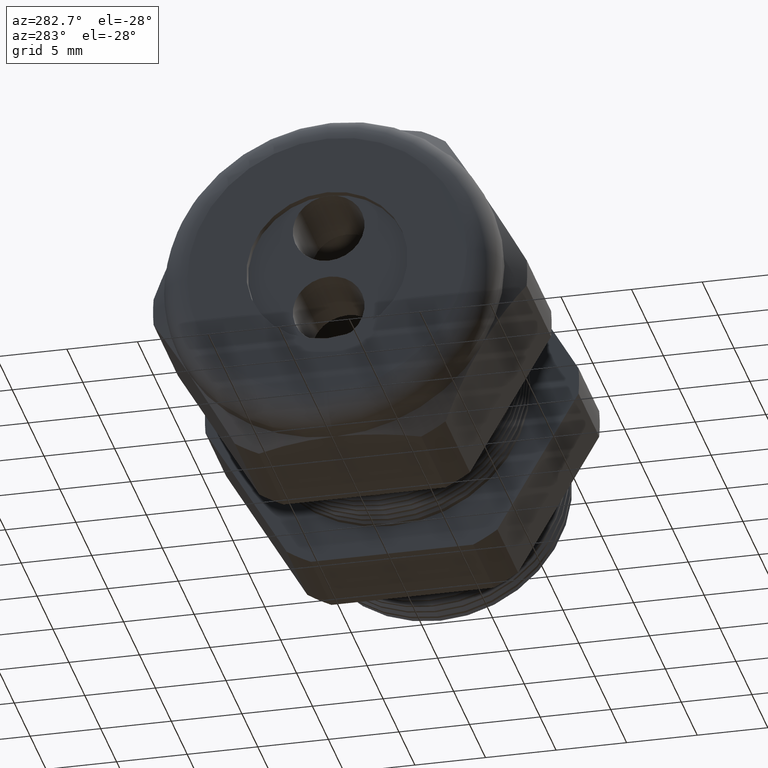
[diagram: clean part render]
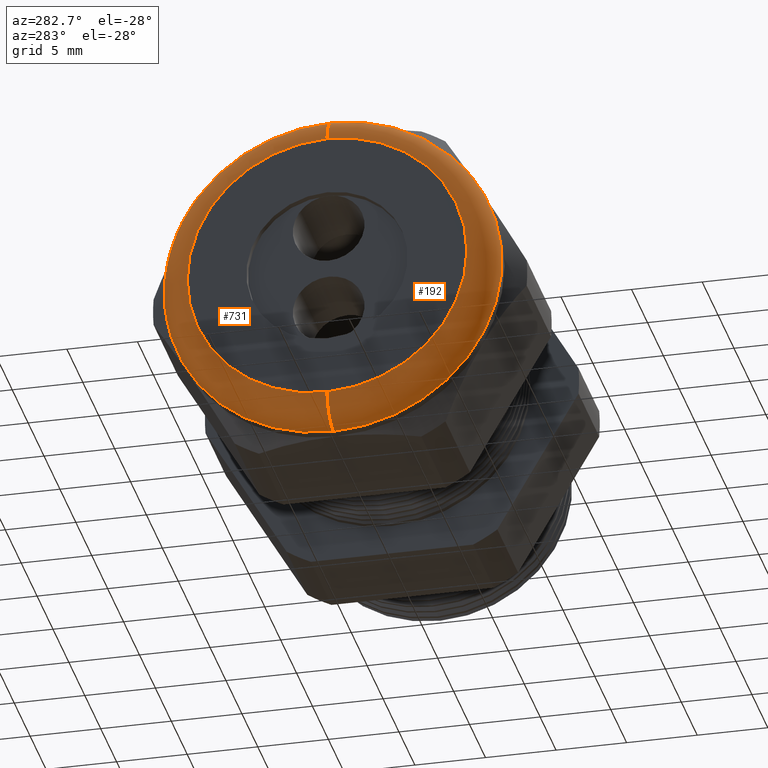
[diagram: same view with one multi-face feature highlighted, each face labeled with its STEP entity id]
A machine part, auxiliary view. The highlighted faces form ONE feature: a constant-radius fillet chain: 2 tangent blend faces with common blend radius 2.032 mm. The faces share edges in the B-rep.
Their STEP definitions:
[1] entity #731 (Torus):
#731 = ADVANCED_FACE ( 'NONE', ( #2386 ), #2385, .T. ) ;
#732 = EDGE_LOOP ( 'NONE', ( #733, #4694, #4693, #4691 ) ) ;
#733 = ORIENTED_EDGE ( 'NONE', *, *, #734, .F. ) ;
#734 = EDGE_CURVE ( 'NONE', #735, #736, #2442, .T. ) ;
#735 = VERTEX_POINT ( 'NONE', #2437 ) ;
#736 = VERTEX_POINT ( 'NONE', #2436 ) ;
#2384 = CARTESIAN_POINT ( 'NONE',  ( -1.290000000000000300, 0.0000000000000000000, 0.0000000000000000000 ) ) ;
#2385 = TOROIDAL_SURFACE ( 'NONE', #2445, 0.3899999999999999600, 0.08000000000000000200 ) ;
#2386 = FACE_OUTER_BOUND ( 'NONE', #732, .T. ) ;
#2436 = CARTESIAN_POINT ( 'NONE',  ( -1.290000000000000300, 5.755839955992558400E-017, 0.4699999999999999200 ) ) ;
#2437 = CARTESIAN_POINT ( 'NONE',  ( -1.290000000000000300, 0.0000000000000000000, -0.4699999999999999200 ) ) ;
#2438 = DIRECTION ( 'NONE',  ( 0.0000000000000000000, 0.0000000000000000000, 1.000000000000000000 ) ) ;
#2439 = DIRECTION ( 'NONE',  ( 1.000000000000000000, 0.0000000000000000000, 0.0000000000000000000 ) ) ;
#2440 = CARTESIAN_POINT ( 'NONE',  ( -1.290000000000000300, 0.0000000000000000000, 0.0000000000000000000 ) ) ;
#2441 = AXIS2_PLACEMENT_3D ( 'NONE', #2440, #2439, #2438 ) ;
#2442 = CIRCLE ( 'NONE', #2441, 0.4699999999999999200 ) ;
#2443 = DIRECTION ( 'NONE',  ( 0.0000000000000000000, 0.0000000000000000000, 1.000000000000000000 ) ) ;
#2444 = DIRECTION ( 'NONE',  ( -1.000000000000000000, 0.0000000000000000000, 0.0000000000000000000 ) ) ;
#2445 = AXIS2_PLACEMENT_3D ( 'NONE', #2384, #2444, #2443 ) ;
#3897 = CARTESIAN_POINT ( 'NONE',  ( -1.370000000000000100, 0.0000000000000000000, 0.3899999999999999600 ) ) ;
#3898 = DIRECTION ( 'NONE',  ( 0.0000000000000000000, 0.0000000000000000000, -1.000000000000000000 ) ) ;
#3899 = DIRECTION ( 'NONE',  ( 0.0000000000000000000, -1.000000000000000000, 0.0000000000000000000 ) ) ;
#3900 = CARTESIAN_POINT ( 'NONE',  ( -1.290000000000000300, 0.0000000000000000000, 0.3899999999999999600 ) ) ;
#3901 = AXIS2_PLACEMENT_3D ( 'NONE', #3900, #3899, #3898 ) ;
#3902 = CIRCLE ( 'NONE', #3901, 0.07999999999999996000 ) ;
#3946 = CARTESIAN_POINT ( 'NONE',  ( -1.370000000000000100, 5.265981236333617600E-017, -0.3899999999999999600 ) ) ;
#3947 = DIRECTION ( 'NONE',  ( 0.0000000000000000000, 0.0000000000000000000, 1.000000000000000000 ) ) ;
#3948 = DIRECTION ( 'NONE',  ( -1.000000000000000000, 0.0000000000000000000, 0.0000000000000000000 ) ) ;
#3949 = CARTESIAN_POINT ( 'NONE',  ( -1.370000000000000100, 0.0000000000000000000, 0.0000000000000000000 ) ) ;
#3950 = AXIS2_PLACEMENT_3D ( 'NONE', #3949, #3948, #3947 ) ;
#3951 = CIRCLE ( 'NONE', #3950, 0.3899999999999999600 ) ;
#3952 = DIRECTION ( 'NONE',  ( 0.0000000000000000000, -1.224646799147353900E-016, 1.000000000000000000 ) ) ;
#3953 = DIRECTION ( 'NONE',  ( 0.0000000000000000000, 1.000000000000000000, 1.224646799147353200E-016 ) ) ;
#3954 = CARTESIAN_POINT ( 'NONE',  ( -1.290000000000000300, 4.776122516674676800E-017, -0.3899999999999999600 ) ) ;
#3955 = AXIS2_PLACEMENT_3D ( 'NONE', #3954, #3953, #3952 ) ;
#3956 = CIRCLE ( 'NONE', #3955, 0.07999999999999996000 ) ;
#4690 = EDGE_CURVE ( 'NONE', #736, #4692, #3902, .T. ) ;
#4691 = ORIENTED_EDGE ( 'NONE', *, *, #4690, .F. ) ;
#4692 = VERTEX_POINT ( 'NONE', #3897 ) ;
#4693 = ORIENTED_EDGE ( 'NONE', *, *, #4696, .F. ) ;
#4694 = ORIENTED_EDGE ( 'NONE', *, *, #4695, .T. ) ;
#4695 = EDGE_CURVE ( 'NONE', #735, #4697, #3956, .T. ) ;
#4696 = EDGE_CURVE ( 'NONE', #4692, #4697, #3951, .T. ) ;
#4697 = VERTEX_POINT ( 'NONE', #3946 ) ;
[2] entity #192 (Torus):
#149 = ORIENTED_EDGE ( 'NONE', *, *, #380, .F. ) ;
#153 = ORIENTED_EDGE ( 'NONE', *, *, #4690, .T. ) ;
#154 = ORIENTED_EDGE ( 'NONE', *, *, #4325, .F. ) ;
#163 = ORIENTED_EDGE ( 'NONE', *, *, #4695, .F. ) ;
#164 = EDGE_LOOP ( 'NONE', ( #163, #154, #153, #149 ) ) ;
#192 = ADVANCED_FACE ( 'NONE', ( #1468 ), #1467, .T. ) ;
#380 = EDGE_CURVE ( 'NONE', #4697, #4692, #1723, .T. ) ;
#735 = VERTEX_POINT ( 'NONE', #2437 ) ;
#736 = VERTEX_POINT ( 'NONE', #2436 ) ;
#1463 = DIRECTION ( 'NONE',  ( 0.0000000000000000000, 0.0000000000000000000, 1.000000000000000000 ) ) ;
#1464 = DIRECTION ( 'NONE',  ( -1.000000000000000000, 0.0000000000000000000, 0.0000000000000000000 ) ) ;
#1465 = CARTESIAN_POINT ( 'NONE',  ( -1.290000000000000300, 0.0000000000000000000, 0.0000000000000000000 ) ) ;
#1466 = AXIS2_PLACEMENT_3D ( 'NONE', #1465, #1464, #1463 ) ;
#1467 = TOROIDAL_SURFACE ( 'NONE', #1466, 0.3899999999999999600, 0.08000000000000000200 ) ;
#1468 = FACE_OUTER_BOUND ( 'NONE', #164, .T. ) ;
#1719 = DIRECTION ( 'NONE',  ( 0.0000000000000000000, 0.0000000000000000000, 1.000000000000000000 ) ) ;
#1720 = DIRECTION ( 'NONE',  ( -1.000000000000000000, 0.0000000000000000000, 0.0000000000000000000 ) ) ;
#1721 = CARTESIAN_POINT ( 'NONE',  ( -1.370000000000000100, 0.0000000000000000000, 0.0000000000000000000 ) ) ;
#1722 = AXIS2_PLACEMENT_3D ( 'NONE', #1721, #1720, #1719 ) ;
#1723 = CIRCLE ( 'NONE', #1722, 0.3899999999999999600 ) ;
#2436 = CARTESIAN_POINT ( 'NONE',  ( -1.290000000000000300, 5.755839955992558400E-017, 0.4699999999999999200 ) ) ;
#2437 = CARTESIAN_POINT ( 'NONE',  ( -1.290000000000000300, 0.0000000000000000000, -0.4699999999999999200 ) ) ;
#3146 = DIRECTION ( 'NONE',  ( 1.000000000000000000, 0.0000000000000000000, 0.0000000000000000000 ) ) ;
#3147 = CARTESIAN_POINT ( 'NONE',  ( -1.290000000000000300, 0.0000000000000000000, 0.0000000000000000000 ) ) ;
#3148 = AXIS2_PLACEMENT_3D ( 'NONE', #3147, #3146, #3210 ) ;
#3153 = CIRCLE ( 'NONE', #3148, 0.4699999999999999200 ) ;
#3210 = DIRECTION ( 'NONE',  ( 0.0000000000000000000, 0.0000000000000000000, 1.000000000000000000 ) ) ;
#3897 = CARTESIAN_POINT ( 'NONE',  ( -1.370000000000000100, 0.0000000000000000000, 0.3899999999999999600 ) ) ;
#3898 = DIRECTION ( 'NONE',  ( 0.0000000000000000000, 0.0000000000000000000, -1.000000000000000000 ) ) ;
#3899 = DIRECTION ( 'NONE',  ( 0.0000000000000000000, -1.000000000000000000, 0.0000000000000000000 ) ) ;
#3900 = CARTESIAN_POINT ( 'NONE',  ( -1.290000000000000300, 0.0000000000000000000, 0.3899999999999999600 ) ) ;
#3901 = AXIS2_PLACEMENT_3D ( 'NONE', #3900, #3899, #3898 ) ;
#3902 = CIRCLE ( 'NONE', #3901, 0.07999999999999996000 ) ;
#3946 = CARTESIAN_POINT ( 'NONE',  ( -1.370000000000000100, 5.265981236333617600E-017, -0.3899999999999999600 ) ) ;
#3952 = DIRECTION ( 'NONE',  ( 0.0000000000000000000, -1.224646799147353900E-016, 1.000000000000000000 ) ) ;
#3953 = DIRECTION ( 'NONE',  ( 0.0000000000000000000, 1.000000000000000000, 1.224646799147353200E-016 ) ) ;
#3954 = CARTESIAN_POINT ( 'NONE',  ( -1.290000000000000300, 4.776122516674676800E-017, -0.3899999999999999600 ) ) ;
#3955 = AXIS2_PLACEMENT_3D ( 'NONE', #3954, #3953, #3952 ) ;
#3956 = CIRCLE ( 'NONE', #3955, 0.07999999999999996000 ) ;
#4325 = EDGE_CURVE ( 'NONE', #736, #735, #3153, .T. ) ;
#4690 = EDGE_CURVE ( 'NONE', #736, #4692, #3902, .T. ) ;
#4692 = VERTEX_POINT ( 'NONE', #3897 ) ;
#4695 = EDGE_CURVE ( 'NONE', #735, #4697, #3956, .T. ) ;
#4697 = VERTEX_POINT ( 'NONE', #3946 ) ;